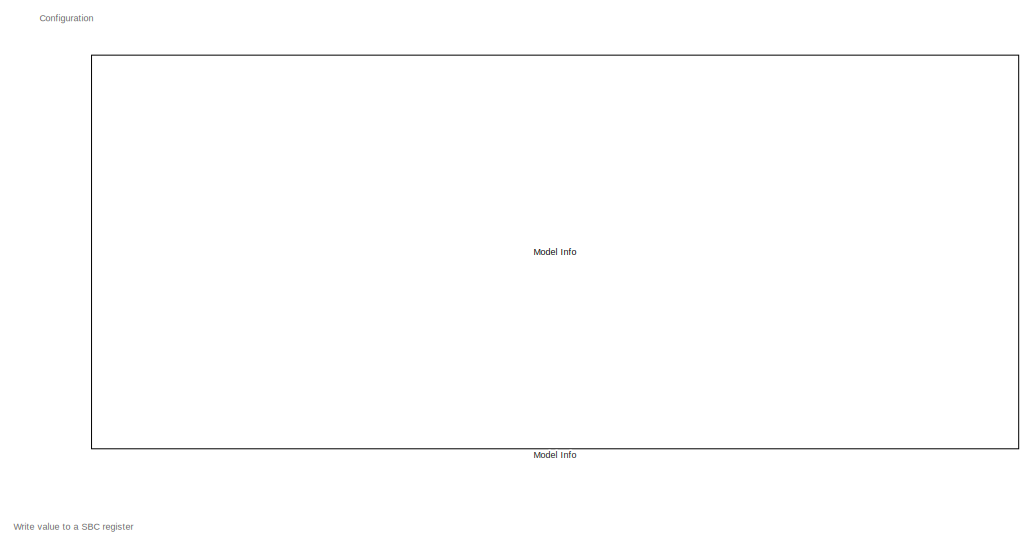
[diagram: root canvas - part 1/3, top left region]
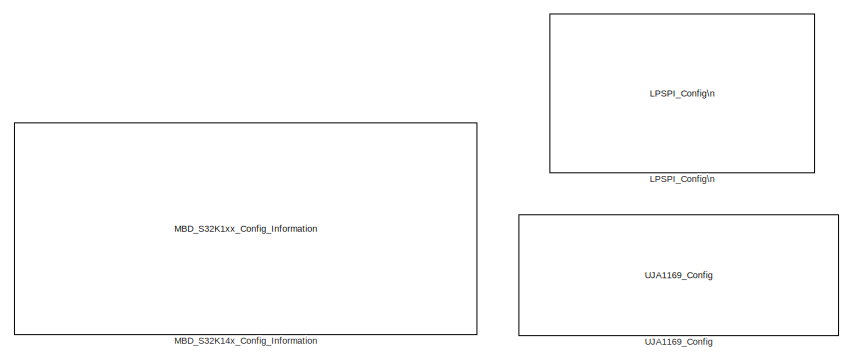
[diagram: root canvas - part 2/3, top right region]
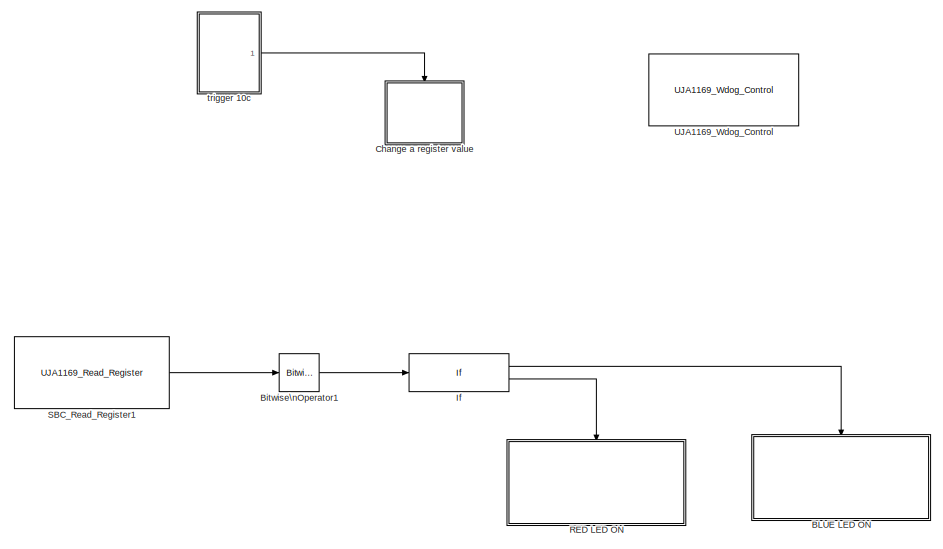
[diagram: root canvas - part 3/3, bottom center region]
MODEL sbc_uja1169_rw_reg_s32k14x
KIND model
CONFIG InitFcn = mbd_s32k_consistency_checks(bdroot(gcs));
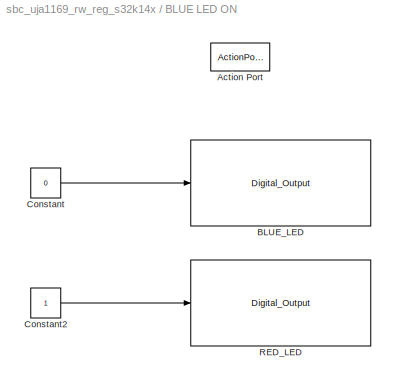
BLOCK [SubSystem] BLUE LED ON
  Ports = [0, 0, 0, 0, 0, 0, 0, 1]
  RequestExecContextInheritance = off
  SID = 166
  TreatAsAtomicUnit = on
  Variant = off
BLOCK [ActionPort] BLUE LED ON/Action Port
  SID = 167
BLOCK [Reference] BLUE LED ON/BLUE_LED  REF=mbd_s32k1xx_ec_toolbox/GPIO Blocks/Digital_Output
  Ports = [1]
  SID = 434
  SourceBlock = mbd_s32k1xx_ec_toolbox/GPIO Blocks/Digital_Output
  SourceType = gpio_s32k_output
  drive_strength = Low
  gpio_pin = PTD0: [PTD0 | Port D I/O]
  init_val = Low
BLOCK [Constant] BLUE LED ON/Constant
  OutDataTypeStr = boolean
  SID = 185
  Value = 0
BLOCK [Constant] BLUE LED ON/Constant2
  OutDataTypeStr = boolean
  SID = 186
BLOCK [Reference] BLUE LED ON/RED_LED  REF=mbd_s32k1xx_ec_toolbox/GPIO Blocks/Digital_Output
  Ports = [1]
  SID = 435
  SourceBlock = mbd_s32k1xx_ec_toolbox/GPIO Blocks/Digital_Output
  SourceType = gpio_s32k_output
  drive_strength = Low
  gpio_pin = PTD15: [PTD15 | Port D I/O]
  init_val = Low
BLOCK [Reference] Bitwise\nOperator1  REF=simulink/Logic and Bit\nOperations/Bitwise\nOperator
  BitMask = bin2dec('00000011')
  BitMaskRealWorld = Stored Integer
  NumInputPorts = 1
  Ports = [1, 1]
  SID = 164
  SourceBlock = simulink/Logic and Bit\nOperations/Bitwise\nOperator
  SourceProductBaseCode = SL
  SourceProductName = Simulink
  SourceType = Bitwise Operator
  UseBitMask = on
  logicop = AND
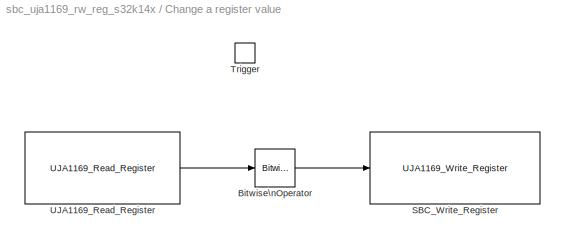
BLOCK [SubSystem] Change a register value
  Ports = [0, 0, 0, 1]
  RequestExecContextInheritance = off
  SID = 85
  Variant = off
BLOCK [Reference] Change a register value/Bitwise\nOperator  REF=simulink/Logic and Bit\nOperations/Bitwise\nOperator
  BitMask = bin2dec('00000011')
  BitMaskRealWorld = Stored Integer
  NumInputPorts = 1
  Ports = [1, 1]
  SID = 162
  SourceBlock = simulink/Logic and Bit\nOperations/Bitwise\nOperator
  SourceProductBaseCode = SL
  SourceProductName = Simulink
  SourceType = Bitwise Operator
  UseBitMask = on
  logicop = OR
BLOCK [Reference] Change a register value/SBC_Write_Register  REF=mbd_sbc_ec_toolbox/UJA116x/UJA1169_Write_Register
  Ports = [1]
  Register = SBC_UJA_REGULATOR
  SID = 108
  SourceBlock = mbd_sbc_ec_toolbox/UJA116x/UJA1169_Write_Register
  SourceType = sbc_uja1169_s32k_write_reg
BLOCK [TriggerPort] Change a register value/Trigger
  Ports = []
  SID = 392
  StatesWhenEnabling = held
  VariantControl = Variant
BLOCK [Reference] Change a register value/UJA1169_Read_Register  REF=mbd_sbc_ec_toolbox/UJA116x/UJA1169_Read_Register
  Ports = [0, 1]
  Register = SBC_UJA_REGULATOR
  SID = 163
  SourceBlock = mbd_sbc_ec_toolbox/UJA116x/UJA1169_Read_Register
  SourceType = sbc_uja1169_s32k_read_reg
BLOCK [If] If
  IfExpression = u1 == 3
  Ports = [1, 2]
  SID = 14
BLOCK [Reference] LPSPI_Config\n  REF=mbd_s32k1xx_ec_toolbox/Communication Blocks/SPI Blocks/LPSPI_Config\n
  BaudRate = 300000
  BitOrder = MSB first
  CPHA = 1
  CPOL = 0
  ContinuousTransfer = off
  InstanceNumber = 1
  PCSPol = ActiveLow
  Ports = []
  Priority = 1
  Role = Master
  SID = 100
  ShowAdvanced = on
  SourceBlock = mbd_s32k1xx_ec_toolbox/Communication Blocks/SPI Blocks/LPSPI_Config\n
  SourceType = lpspi_s32k_config
  TransferSize = 16
  WhichPCS = 3
  pcs0 = PTD3: [LPSPI1_PCS0 | Peripheral Chip Select 0]
  pcs1 = PTA6: [LPSPI1_PCS1 | Peripheral Chip Select 1]
  pcs2 = PTA16: [LPSPI1_PCS2 | Peripheral Chip Select 2]
  pcs3 = PTB17: [LPSPI1_PCS3 | Peripheral Chip Select 3]
  sck = PTB14: [LPSPI1_SCK | LPSPI Serial Clock I/O]
  sin = PTB15: [LPSPI1_SIN | LPSPI Serial Data Input]
  sout = PTB16: [LPSPI1_SOUT | LPSPI Serial Data Output]
BLOCK [Reference] MBD_S32K14x_Config_Information  REF=mbd_s32k1xx_ec_toolbox/MBD_S32K1xx_Config_Information
  ADC_PcrCheckEnDis = off
  AMMCLIB_PcrCheckEnDis = off
  CMP_PcrCheckEnDis = off
  CSEc_PcrCheckEnDis = off
  ConfigParams_PcrCheckEnDis = on
  FM_PcrCheckEnDis = off
  FTM_Dual_Edge_Inputs_PcrCheckEnDis = off
  FTM_Hall_Sensor_Inputs_PcrCheckEnDis = on
  FTM_Input_Edge_Inputs_PcrCheckEnDis = off
  FTM_PWM_PcrCheckEnDis = on
  FTM_Quadrature_Inputs_PcrCheckEnDis = off
  FlexCAN_PcrCheckEnDis = off
  FlexIO_PcrCheckEnDis = off
  GPIO_InputPcrCheckEnDis = on
  GPIO_OutputPcrCheckEnDis = on
  LIN_PcrCheckEnDis = on
  LPI2C_PcrCheckEnDis = off
  LPSPI_PcrCheckEnDis = on
  LPTMR_PcrCheckEnDis = off
  LPUART_PcrCheckEnDis = off
  ModelRef_PcrCheckEnDis = on
  PDB0_PcrCheckEnDis = off
  PIT_PcrCheckEnDis = off
  Ports = []
  Priority = 0
  Profile_PcrCheckEnDis = off
  RTC_PcrCheckEnDis = off
  SBC_PcrCheckEnDis = on
  SID = 95
  SourceBlock = mbd_s32k1xx_ec_toolbox/MBD_S32K1xx_Config_Information
  SourceType = MBDTBX_EC_S32K
  WDOG_PcrCheckEnDis = on
  config_params = []
  disp_str = Target : S32K144-64KB_SRAM\nPackage : 100-pin\nSystem clock : 80 MHz\nXTAL clock : External 8 MHz\nCompiler : IAR\nTarget Type : FLASH\nDownload Code after build : off\nStep Tick Interrupt Priority : 15
  ds_import_enable = on
  eDMA_PcrCheckEnDis = off
  gcc_target_assemble_opts = -mcpu=cortex-m4 -mthumb -mfloat-abi=hard -mfpu=fpv4-sp-d16 -g
  gcc_target_compile_opts = -mcpu=cortex-m4 -mthumb -mfloat-abi=hard -mfpu=fpv4-sp-d16 -O1 -g -gstrict-dwarf
  gcc_target_default_lcf = on
  gcc_target_link_opts = -mcpu=cortex-m4 -mthumb -mfloat-abi=hard -mfpu=fpv4-sp-d16
  gcc_target_user_lcf = S32K144_48_flash.ld
  ghs_target_assemble_opts = -cpu=cortexm4f -fpu=vfpv4_d16
  ghs_target_compile_opts = -cpu=cortexm4f -thumb -DARM_MATH_CM4 -fpu=vfpv4_d16 -fsingle -Ogeneral -Wundef -Wimplicit-int -Wshadow -Wtrigraphs --no_commons --gnu_asm -gnu99 -gdwarf-2 -G
  ghs_target_default_lcf = off
  ghs_target_link_opts = -cpu=cortexm4f -thumb -fpu=vfpv4_d16
  ghs_target_user_lcf = S32K144_48_flash.ld
  iar_target_assemble_opts = --cpu Cortex-M4F --thumb --fpu VFPv4_sp
  iar_target_compile_opts = --cpu=Cortex-M4F --thumb --fpu=VFPv4_sp -Ol -e --debug --dlib_config normal
  iar_target_default_lcf = off
  iar_target_link_opts = --no_exceptions --vfe --inline
  iar_target_user_lcf = S32K144_48_flash.icf
  mbdt_ver = 0
  mcu_steptick_prio = 15
  mcu_steptick_timer = LPIT Channel 0
  mcu_system_clock_freq = 80
  mcu_target_name = S32K144
  mcu_target_package = 64-LQFP
  mcu_target_sram_size = 48KB
  mcu_xtal_freq = External 8
  pil_download_enable = off
  pil_download_rate = 57600
  pil_opensda_drive = Custom
  pil_opensda_drive_custom = D
  pil_uart_instance = 0
  pil_uart_rx = PTA2: [LPUART0_RX | Receive]
  pil_uart_tx = PTA3: [LPUART0_TX | Transmit]
  rbl_com_port = Custom
  rbl_com_port_custom = COM1
  rbl_download_enable = on
  rbl_download_interface = OpenSDA
  rbl_restart_request = off
  rbl_start_delay = 5000000
  target_compiler = GCC
  target_memory = FLASH
BLOCK [Reference] Model Info  REF=simulink/Model-Wide\nUtilities/Model Info
  DisplayStringWithTags = Model Name: %<ModelName>\n\nDescription: %<Description>
  Frame = off
  HorizontalTextAlignment = Left
  LeftAlignmentValue = 0.02
  MaskDisplayString = Model Name: sbc_uja1169_rw_reg_s32k14x\\n\\nDescription: This model shows how to use SBC_Read_Register and SBC_Write_Register blocks.\\nThe SBC is configured with reset threshold set to 90 % of V1 nominal output voltage, and after several seconds the reset threshold is set to 60% of V1 .<path>:\\n - RED Led should be on about 5 sec (reset threshold set to 90 %)\\n-  BLUE Led should be...<+596ch>
  Ports = []
  SID = 431
  SourceBlock = simulink/Model-Wide\nUtilities/Model Info
  SourceProductBaseCode = SL
  SourceProductName = Simulink
  SourceType = CMBlock
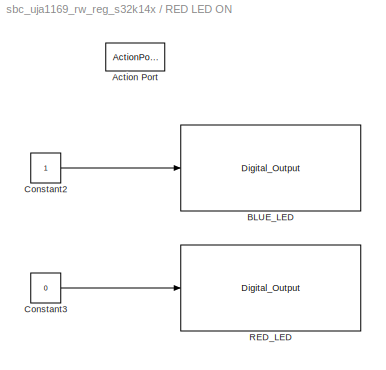
BLOCK [SubSystem] RED  LED ON
  Ports = [0, 0, 0, 0, 0, 0, 0, 1]
  RequestExecContextInheritance = off
  SID = 334
  TreatAsAtomicUnit = on
  Variant = off
BLOCK [ActionPort] RED  LED ON/Action Port
  SID = 335
BLOCK [Reference] RED  LED ON/BLUE_LED  REF=mbd_s32k1xx_ec_toolbox/GPIO Blocks/Digital_Output
  Ports = [1]
  SID = 432
  SourceBlock = mbd_s32k1xx_ec_toolbox/GPIO Blocks/Digital_Output
  SourceType = gpio_s32k_output
  drive_strength = Low
  gpio_pin = PTD0: [PTD0 | Port D I/O]
  init_val = Low
BLOCK [Constant] RED  LED ON/Constant2
  OutDataTypeStr = boolean
  SID = 354
BLOCK [Constant] RED  LED ON/Constant3
  OutDataTypeStr = boolean
  SID = 355
  Value = 0
BLOCK [Reference] RED  LED ON/RED_LED  REF=mbd_s32k1xx_ec_toolbox/GPIO Blocks/Digital_Output
  Ports = [1]
  SID = 433
  SourceBlock = mbd_s32k1xx_ec_toolbox/GPIO Blocks/Digital_Output
  SourceType = gpio_s32k_output
  drive_strength = Low
  gpio_pin = PTD15: [PTD15 | Port D I/O]
  init_val = Low
BLOCK [Reference] SBC_Read_Register1  REF=mbd_sbc_ec_toolbox/UJA116x/UJA1169_Read_Register
  Ports = [0, 1]
  Priority = 4
  Register = SBC_UJA_REGULATOR
  SID = 165
  SourceBlock = mbd_sbc_ec_toolbox/UJA116x/UJA1169_Read_Register
  SourceType = sbc_uja1169_s32k_read_reg
BLOCK [Reference] UJA1169_Config  REF=mbd_sbc_ec_toolbox/UJA116x/UJA1169_Config
  CANfailure = on
  CANmodeCtrl = Offline
  CANsilence = on
  CANwkUp = on
  DataLength = 0
  FDPartial = off
  FDPartialOK = off
  FDcontrol = off
  ID1 = 0
  ID2 = 0
  ID3 = 0
  ID4 = 0
  IDmask1 = 0
  IDmask2 = 0
  IDmask3 = 0
  IDmask4 = 0
  IdFormat = 11-bit
  LHCtrl = Floating
  Lock0 = off
  Lock1 = off
  Lock2 = off
  Lock3 = off
  Lock4 = off
  Lock5 = off
  Lock6 = off
  NominalPer = 128 ms
  PartialNetwData = Don't care
  Ports = []
  Priority = 2
  ResetTresh = 90
  SID = 106
  SourceBlock = mbd_sbc_ec_toolbox/UJA116x/UJA1169_Config
  SourceType = sbc_uja1169_s32k_config
  V1underv = on
  V2overv = on
  V2underv = on
  VextConfig = V2C OFF
  WdogModeCtrl = Autonomous
  dataMask0 = 0
  dataMask1 = 0
  dataMask2 = 0
  dataMask3 = 0
  dataMask4 = 0
  dataMask5 = 0
  dataMask6 = 0
  dataMask7 = 0
  dataRate = 50 kbit/s
  deviceModel = UJA1169TK/F
  fallingEdge = on
  modeCtrl = NORMAL
  overtempWrng = on
  pdc = higher value
  risingEdge = on
  spiFailure = on
BLOCK [Reference] UJA1169_Wdog_Control  REF=mbd_sbc_ec_toolbox/UJA116x/UJA1169_Wdog_Control
  ModeCtrl = Window
  NominalPer = 128 ms
  Ports = []
  SID = 107
  SourceBlock = mbd_sbc_ec_toolbox/UJA116x/UJA1169_Wdog_Control
  SourceType = sbc_uja1169_s32k_wdog_control
  mode = off
  period = off
  reset = on
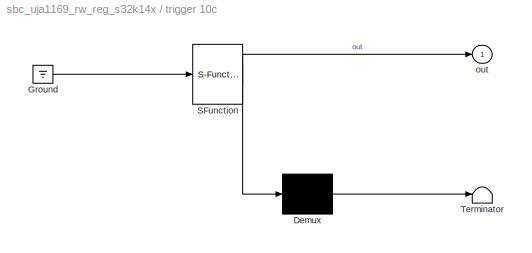
BLOCK [SubSystem] trigger 10c
  ErrorFcn = Stateflow.Translate.translate
  PermitHierarchicalResolution = ExplicitOnly
  Ports = [0, 1]
  Priority = 0
  RequestExecContextInheritance = off
  SFBlockType = Chart
  SID = 390
  TreatAsAtomicUnit = on
  Variant = off
BLOCK [Demux] trigger 10c/ Demux 
  Outputs = 1
  Ports = [1, 1]
  SID = 390::68
BLOCK [Ground] trigger 10c/ Ground 
  SID = 390::70
BLOCK [S-Function] trigger 10c/ SFunction 
  EnableBusSupport = off
  FunctionName = sf_sfun
  PortCounts = [1 2]
  Ports = [1, 2]
  SFcnIsStateOwnerBlock = off
  SFunctionDeploymentMode = off
  SID = 390::67
  Tag = Stateflow S-Function sbc_uja1169_rw_reg_s32k14x 2
BLOCK [Terminator] trigger 10c/ Terminator 
  SID = 390::69
BLOCK [Outport] trigger 10c/out
  IconDisplay = Port number
  SID = 390::5
ANNOTATION (root): Configuration
ANNOTATION (root): Write value to a SBC register
LINE BLUE LED ON/Constant2:1 -> BLUE LED ON/RED_LED:1
LINE BLUE LED ON/Constant:1 -> BLUE LED ON/BLUE_LED:1
LINE Bitwise\nOperator1:1 -> If:1
LINE Change a register value/Bitwise\nOperator:1 -> Change a register value/SBC_Write_Register:1
LINE Change a register value/UJA1169_Read_Register:1 -> Change a register value/Bitwise\nOperator:1
LINE If:1 -> BLUE LED ON:ifaction
LINE If:2 -> RED  LED ON:ifaction
LINE RED  LED ON/Constant2:1 -> RED  LED ON/BLUE_LED:1
LINE RED  LED ON/Constant3:1 -> RED  LED ON/RED_LED:1
LINE SBC_Read_Register1:1 -> Bitwise\nOperator1:1
LINE trigger 10c/ Demux :1 -> trigger 10c/ Terminator :1
LINE trigger 10c/ Ground :1 -> trigger 10c/ SFunction :1
LINE trigger 10c/ SFunction :1 -> trigger 10c/ Demux :1
LINE trigger 10c/ SFunction :2 -> trigger 10c/out:1
LINE trigger 10c:1 -> Change a register value:trigger
CHART trigger 10c states=2 transitions=3
  STATE_LABEL 'A\\ndu:\\ncnt = cnt +1;\\nout = 0;\\n\\n'
  STATE_LABEL 'A1\\ndu:\\ncnt = 0;\\nout = 1;'
note: 1 file-system path scrubbed to <path> (not preserved elsewhere — flat text is the only slx artifact)
